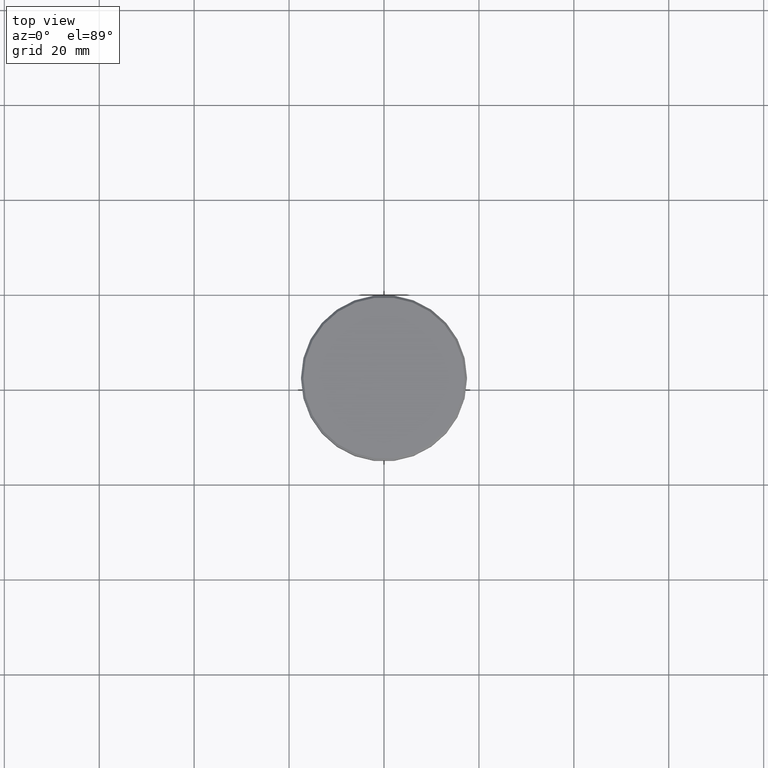
[diagram: clean part render]
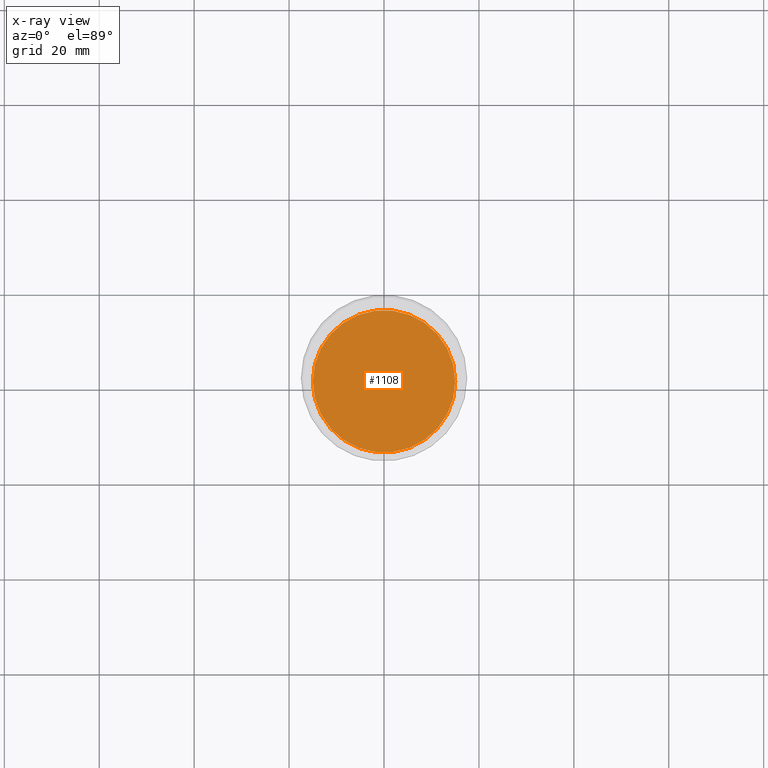
[diagram: x-ray — body ghosted, one internal face saturated and labeled with its STEP entity id]
A machine part, top view, then the same camera in x-ray: the body is ghosted and one INTERNAL B-rep face — a face not visible from any outside direction — is saturated and labeled: STEP entity #1108.
In plain terms, the highlighted planar face has unit normal (0, 0, -1).
Its self-contained STEP definition (entity closure, byte-faithful):
#307 = CARTESIAN_POINT ( 'NONE',  ( 0.000000000000000000, 0.000000000000000000, -41.99999999999999289 ) ) ;
#370 = CARTESIAN_POINT ( 'NONE',  ( 0.000000000000000000, 0.000000000000000000, -41.99999999999999289 ) ) ;
#474 = ORIENTED_EDGE ( 'NONE', *, *, #1102, .T. ) ;
#513 = AXIS2_PLACEMENT_3D ( 'NONE', #307, #999, #912 ) ;
#518 = CARTESIAN_POINT ( 'NONE',  ( 15.00000000000000000, 0.000000000000000000, -41.99999999999999289 ) ) ;
#563 = CIRCLE ( 'NONE', #513, 15.00000000000000000 ) ;
#584 = CARTESIAN_POINT ( 'NONE',  ( -15.00000000000000000, 1.836970198721029589E-15, -41.99999999999999289 ) ) ;
#586 = CIRCLE ( 'NONE', #677, 15.00000000000000000 ) ;
#666 = CARTESIAN_POINT ( 'NONE',  ( 0.000000000000000000, 0.000000000000000000, -41.99999999999999289 ) ) ;
#667 = ORIENTED_EDGE ( 'NONE', *, *, #1024, .T. ) ;
#677 = AXIS2_PLACEMENT_3D ( 'NONE', #370, #798, #721 ) ;
#706 = VERTEX_POINT ( 'NONE', #518 ) ;
#721 = DIRECTION ( 'NONE',  ( 1.000000000000000000, 0.000000000000000000, 0.000000000000000000 ) ) ;
#740 = VERTEX_POINT ( 'NONE', #584 ) ;
#798 = DIRECTION ( 'NONE',  ( -0.000000000000000000, -0.000000000000000000, 1.000000000000000000 ) ) ;
#827 = FACE_OUTER_BOUND ( 'NONE', #1011, .T. ) ;
#836 = DIRECTION ( 'NONE',  ( 0.000000000000000000, 0.000000000000000000, -1.000000000000000000 ) ) ;
#879 = AXIS2_PLACEMENT_3D ( 'NONE', #666, #836, #931 ) ;
#912 = DIRECTION ( 'NONE',  ( 1.000000000000000000, 0.000000000000000000, 0.000000000000000000 ) ) ;
#931 = DIRECTION ( 'NONE',  ( -1.000000000000000000, 0.000000000000000000, -0.000000000000000000 ) ) ;
#999 = DIRECTION ( 'NONE',  ( -0.000000000000000000, -0.000000000000000000, 1.000000000000000000 ) ) ;
#1005 = PLANE ( 'NONE',  #879 ) ;
#1011 = EDGE_LOOP ( 'NONE', ( #474, #667 ) ) ;
#1024 = EDGE_CURVE ( 'NONE', #740, #706, #586, .T. ) ;
#1102 = EDGE_CURVE ( 'NONE', #706, #740, #563, .T. ) ;
#1108 = ADVANCED_FACE ( 'NONE', ( #827 ), #1005, .F. ) ;